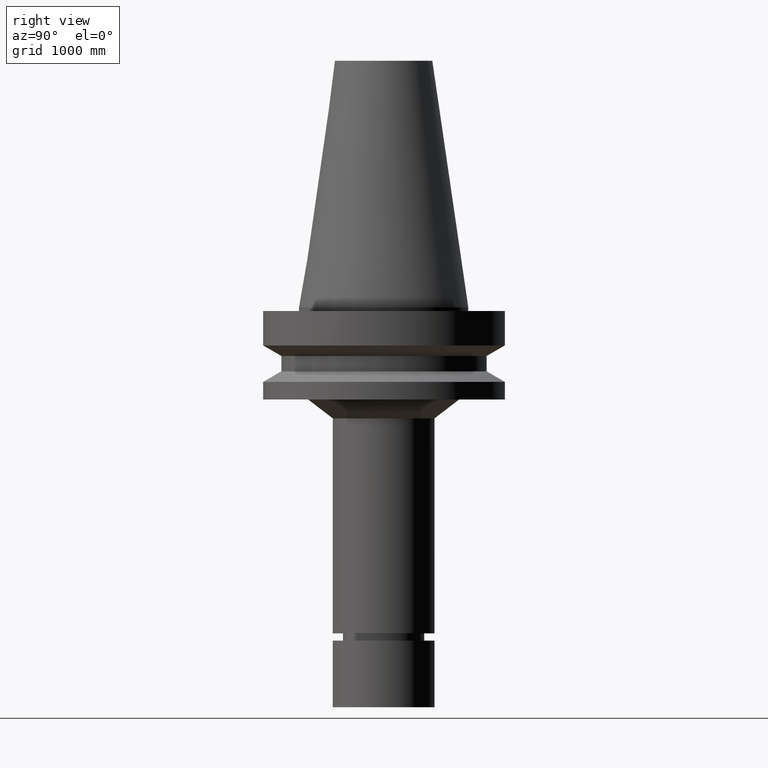
[diagram: clean part render]
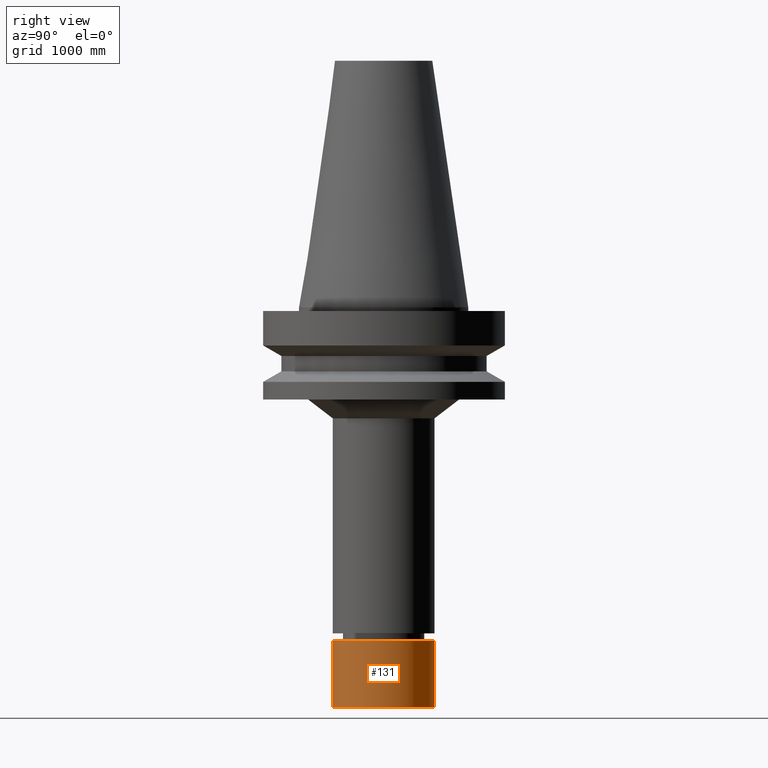
[diagram: same view with one face highlighted and labeled with its STEP entity id]
A machine part, right view. The second image highlights one B-rep face of the part: STEP entity #131.
In plain terms, the highlighted cylindrical surface (bore or boss wall) has radius 533.4 mm, axis along (0, 0, -1).
Its self-contained STEP definition (entity closure, byte-faithful):
#131=ADVANCED_FACE('Unnamed[1]',(#285,#286),#287,.T.);
#133=EDGE_CURVE('Unnamed[1]',#289,#289,#290,.T.);
#145=EDGE_CURVE('Unnamed[1]',#308,#308,#309,.T.);
#285=FACE_BOUND('',#480,.T.);
#286=FACE_BOUND('',#481,.T.);
#287=CYLINDRICAL_SURFACE('',#482,21.0);
#289=VERTEX_POINT('',#485);
#290=CIRCLE('',#486,21.0);
#308=VERTEX_POINT('',#509);
#309=CIRCLE('',#510,21.0);
#480=EDGE_LOOP('',(#671));
#481=EDGE_LOOP('',(#672));
#482=AXIS2_PLACEMENT_3D('',#673,#674,#675);
#485=CARTESIAN_POINT('',(1.01033360929657E-014,21.0,-165.0));
#486=AXIS2_PLACEMENT_3D('',#676,#677,#678);
#509=CARTESIAN_POINT('',(8.41944674413805E-015,21.0,-137.5));
#510=AXIS2_PLACEMENT_3D('',#697,#698,#699);
#671=ORIENTED_EDGE('',*,*,#133,.F.);
#672=ORIENTED_EDGE('',*,*,#145,.T.);
#673=CARTESIAN_POINT('',(9.26139141855186E-015,1.99275447418656E-014,-151.25));
#674=DIRECTION('',(6.12323399573677E-017,2.72265846766401E-017,-1.0));
#675=DIRECTION('',(-6.4943002195671E-033,1.0,2.72265846766401E-017));
#676=CARTESIAN_POINT('',(1.01033360929657E-014,2.03019102811694E-014,-165.0));
#677=DIRECTION('',(6.12323399573677E-017,2.72265846766401E-017,-1.0));
#678=DIRECTION('',(-6.4943002195671E-033,1.0,2.72265846766401E-017));
#697=CARTESIAN_POINT('',(8.41944674413805E-015,1.95531792025618E-014,-137.5));
#698=DIRECTION('',(6.12323399573677E-017,2.72265846766401E-017,-1.0));
#699=DIRECTION('',(-6.4943002195671E-033,1.0,2.72265846766401E-017));